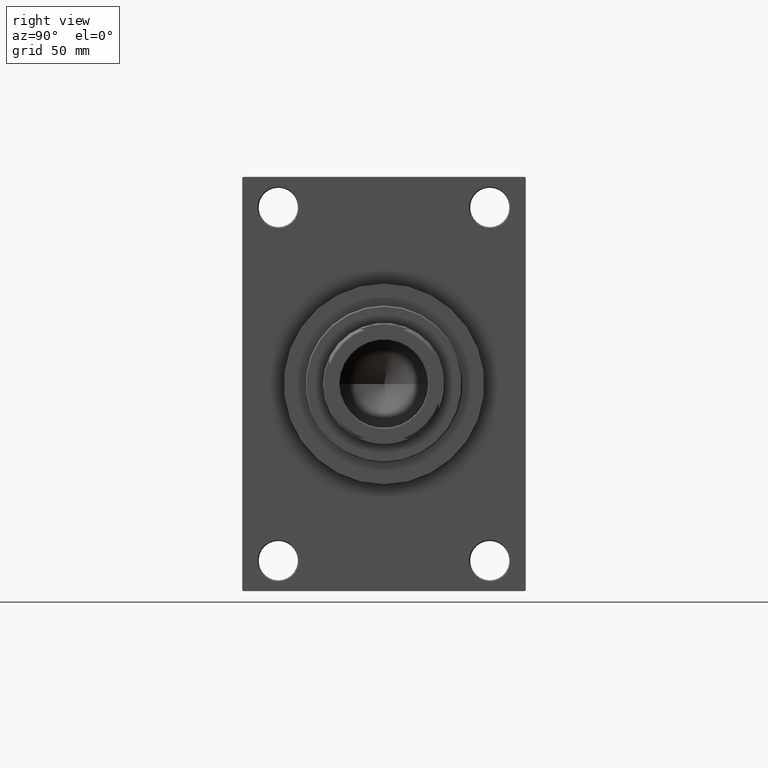
[diagram: clean part render]
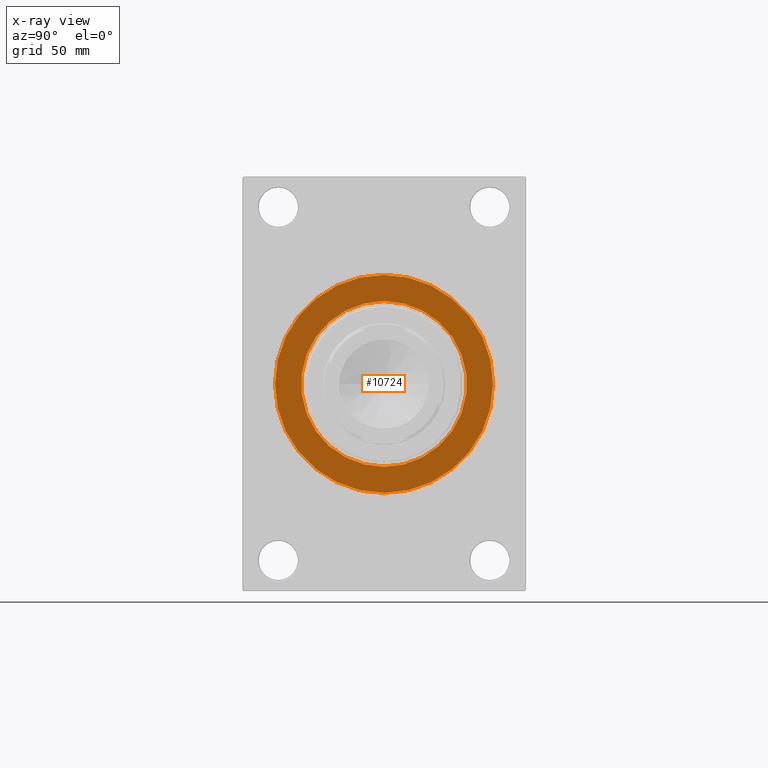
[diagram: x-ray — body ghosted, one internal face saturated and labeled with its STEP entity id]
A machine part, right view, then the same camera in x-ray: the body is ghosted and one INTERNAL B-rep face — a face not visible from any outside direction — is saturated and labeled: STEP entity #10724.
In plain terms, the highlighted planar face has unit normal (-1, 0, 0).
Its self-contained STEP definition (entity closure, byte-faithful):
#1581 = EDGE_CURVE ( 'NONE', #26428, #27491, #8273, .T. ) ;
#2809 = AXIS2_PLACEMENT_3D ( 'NONE', #10263, #17491, #32224 ) ;
#4331 = VERTEX_POINT ( 'NONE', #35084 ) ;
#7113 = CARTESIAN_POINT ( 'NONE',  ( 117.0000000000000000, -2.602085213965210642E-15, 0.000000000000000000 ) ) ;
#8232 = DIRECTION ( 'NONE',  ( 1.000000000000000000, 0.000000000000000000, 0.000000000000000000 ) ) ;
#8273 = CIRCLE ( 'NONE', #20604, 50.00000000000000000 ) ;
#9220 = EDGE_CURVE ( 'NONE', #4331, #18062, #36174, .T. ) ;
#10263 = CARTESIAN_POINT ( 'NONE',  ( 117.0000000000000000, 0.000000000000000000, 0.000000000000000000 ) ) ;
#10724 = ADVANCED_FACE ( 'NONE', ( #33950, #15607 ), #45045, .T. ) ;
#11015 = CARTESIAN_POINT ( 'NONE',  ( 117.0000000000000000, 0.000000000000000000, 0.000000000000000000 ) ) ;
#11958 = DIRECTION ( 'NONE',  ( -1.000000000000000000, 0.000000000000000000, -0.000000000000000000 ) ) ;
#11971 = CARTESIAN_POINT ( 'NONE',  ( 117.0000000000000000, 0.000000000000000000, 0.000000000000000000 ) ) ;
#15105 = DIRECTION ( 'NONE',  ( 0.000000000000000000, 0.000000000000000000, 1.000000000000000000 ) ) ;
#15607 = FACE_OUTER_BOUND ( 'NONE', #32272, .T. ) ;
#17491 = DIRECTION ( 'NONE',  ( -1.000000000000000000, 0.000000000000000000, -0.000000000000000000 ) ) ;
#18062 = VERTEX_POINT ( 'NONE', #40046 ) ;
#18727 = ORIENTED_EDGE ( 'NONE', *, *, #43703, .F. ) ;
#19213 = ORIENTED_EDGE ( 'NONE', *, *, #22383, .F. ) ;
#19948 = CIRCLE ( 'NONE', #46933, 50.00000000000000000 ) ;
#20235 = CARTESIAN_POINT ( 'NONE',  ( 117.0000000000000000, -2.602085213965210642E-15, 50.00000000000000000 ) ) ;
#20604 = AXIS2_PLACEMENT_3D ( 'NONE', #33572, #8232, #30674 ) ;
#21832 = DIRECTION ( 'NONE',  ( 1.000000000000000000, 0.000000000000000000, 0.000000000000000000 ) ) ;
#22383 = EDGE_CURVE ( 'NONE', #27491, #26428, #19948, .T. ) ;
#23088 = DIRECTION ( 'NONE',  ( -1.000000000000000000, 0.000000000000000000, -0.000000000000000000 ) ) ;
#26190 = CARTESIAN_POINT ( 'NONE',  ( 117.0000000000000000, 3.521148781771555838E-15, -50.00000000000000000 ) ) ;
#26428 = VERTEX_POINT ( 'NONE', #20235 ) ;
#27491 = VERTEX_POINT ( 'NONE', #26190 ) ;
#29673 = EDGE_LOOP ( 'NONE', ( #18727, #41461 ) ) ;
#30674 = DIRECTION ( 'NONE',  ( 0.000000000000000000, 0.000000000000000000, -1.000000000000000000 ) ) ;
#32182 = ORIENTED_EDGE ( 'NONE', *, *, #1581, .F. ) ;
#32224 = DIRECTION ( 'NONE',  ( 0.000000000000000000, 0.000000000000000000, 1.000000000000000000 ) ) ;
#32272 = EDGE_LOOP ( 'NONE', ( #32182, #19213 ) ) ;
#33572 = CARTESIAN_POINT ( 'NONE',  ( 117.0000000000000000, -2.602085213965210642E-15, 0.000000000000000000 ) ) ;
#33950 = FACE_BOUND ( 'NONE', #29673, .T. ) ;
#35084 = CARTESIAN_POINT ( 'NONE',  ( 117.0000000000000000, 4.653657836759941152E-15, 38.00000000000000000 ) ) ;
#35171 = CIRCLE ( 'NONE', #2809, 38.00000000000000000 ) ;
#36174 = CIRCLE ( 'NONE', #45423, 38.00000000000000000 ) ;
#36789 = DIRECTION ( 'NONE',  ( 0.000000000000000000, 0.000000000000000000, -1.000000000000000000 ) ) ;
#37802 = DIRECTION ( 'NONE',  ( -0.000000000000000000, 0.000000000000000000, 1.000000000000000000 ) ) ;
#40046 = CARTESIAN_POINT ( 'NONE',  ( 117.0000000000000000, 0.000000000000000000, -38.00000000000000000 ) ) ;
#41461 = ORIENTED_EDGE ( 'NONE', *, *, #9220, .F. ) ;
#43703 = EDGE_CURVE ( 'NONE', #18062, #4331, #35171, .T. ) ;
#45045 = PLANE ( 'NONE',  #47440 ) ;
#45423 = AXIS2_PLACEMENT_3D ( 'NONE', #11015, #11958, #15105 ) ;
#46933 = AXIS2_PLACEMENT_3D ( 'NONE', #7113, #21832, #36789 ) ;
#47440 = AXIS2_PLACEMENT_3D ( 'NONE', #11971, #23088, #37802 ) ;